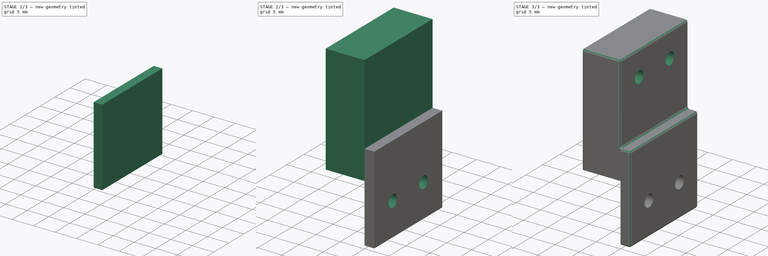
[diagram: build sequence overview — one tinted view per stage of 3, left to right]
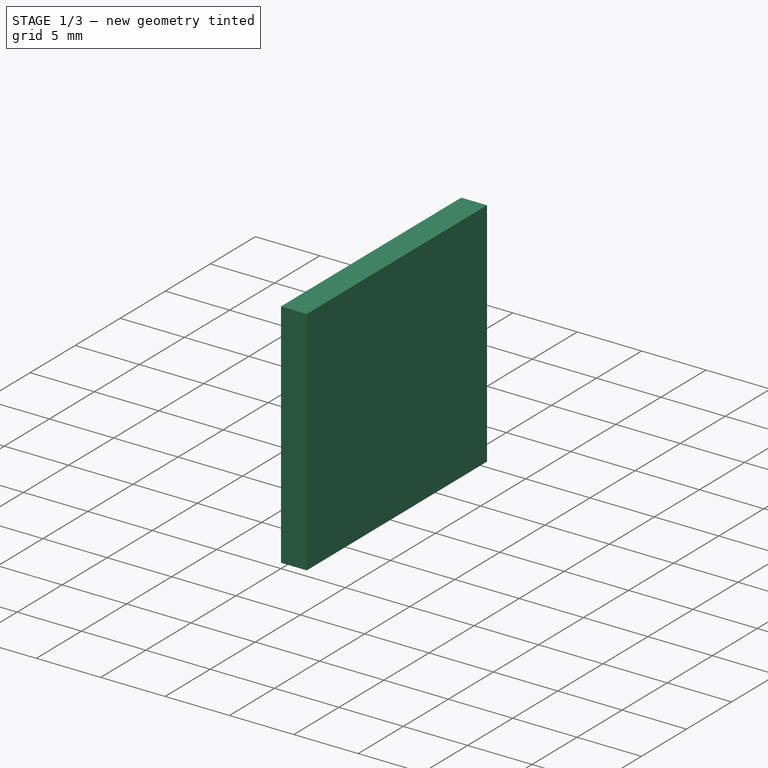
[diagram: stage 1 of 3 — iso view after this stage's code; geometry added in this stage tinted green]
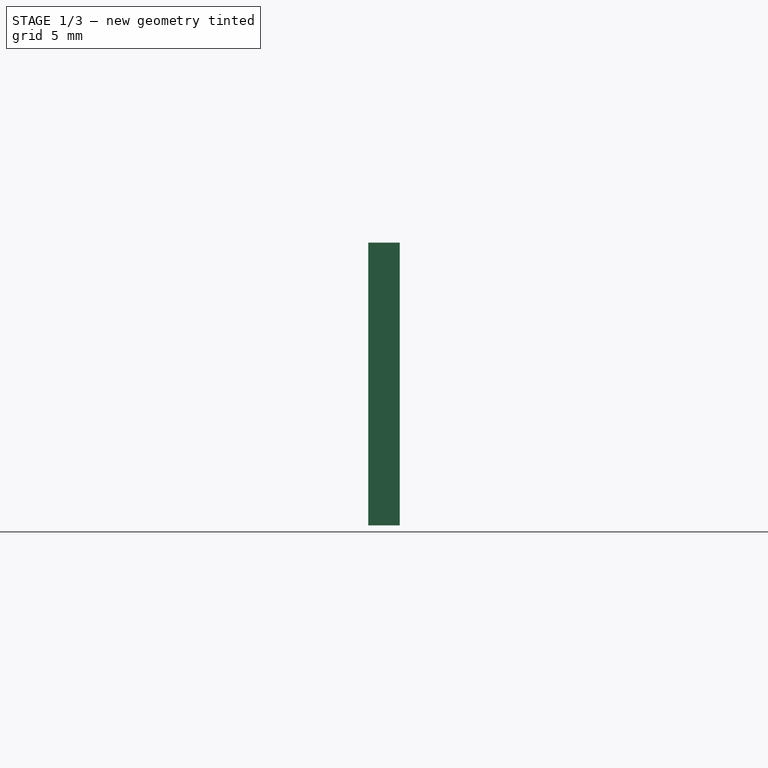
[diagram: stage 1 of 3 — front view after this stage's code; geometry added in this stage tinted green]
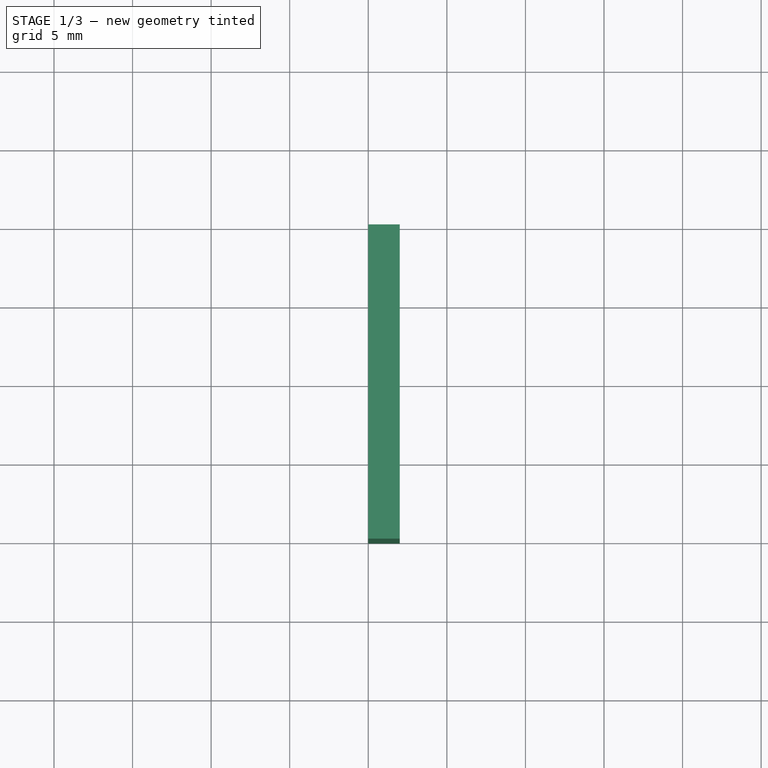
[diagram: stage 1 of 3 — top view after this stage's code; geometry added in this stage tinted green]
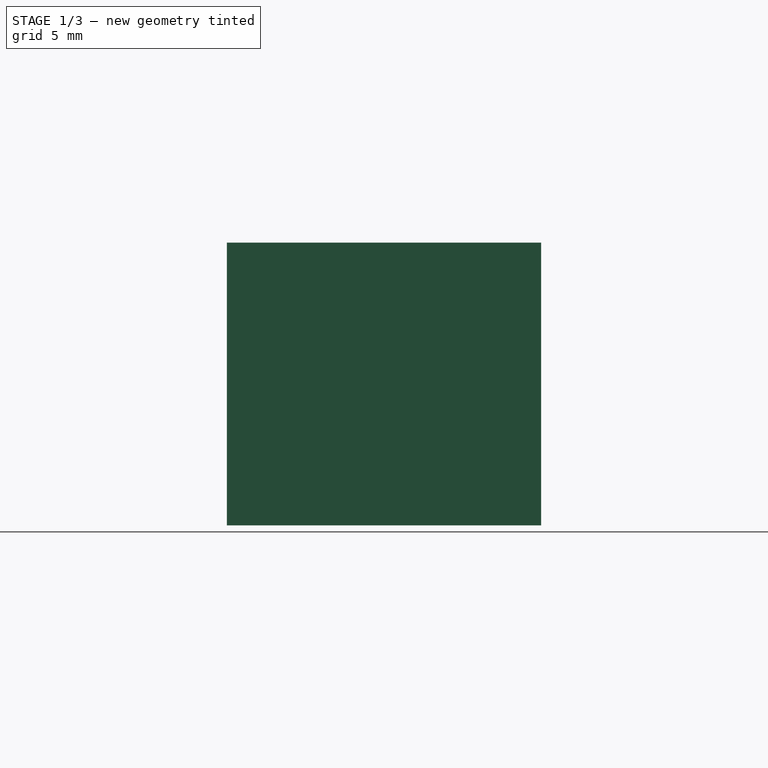
[diagram: stage 1 of 3 — right view after this stage's code; geometry added in this stage tinted green]
FCSTD DOCUMENT  (FreeCAD 0.17R13541 (Git))
Label: GEEETechEndstopExtension
License: Other
LicenseURL: https://www.gnu.org/licenses/gpl-2.0.html
objects: Sketcher::SketchObject×3, PartDesign::Pocket×2, PartDesign::Pad×2, Part::Box×1, PartDesign::FeatureBase×1, PartDesign::Body×1, Part::Fillet×1
note: 15 computed .brp shape members not serialized (recipe doc carries the construction recipe); baked Part::Feature solids carry a one-line shape summary decoded from their .brp

FEATURE [Part::Box] Box  label="Base"
  AttacherType = Attacher::AttachEngine3D
  Height = 18
  Length = 2
  Width = 20
FEATURE [PartDesign::FeatureBase] BaseFeature
  BaseFeature = -> Box
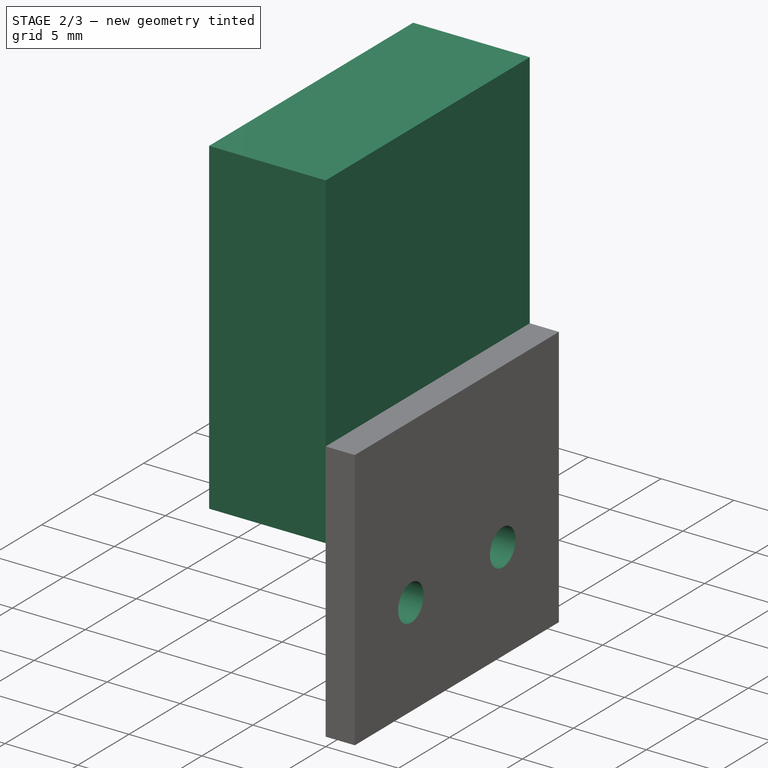
[diagram: stage 2 of 3 — iso view after this stage's code; geometry added in this stage tinted green]
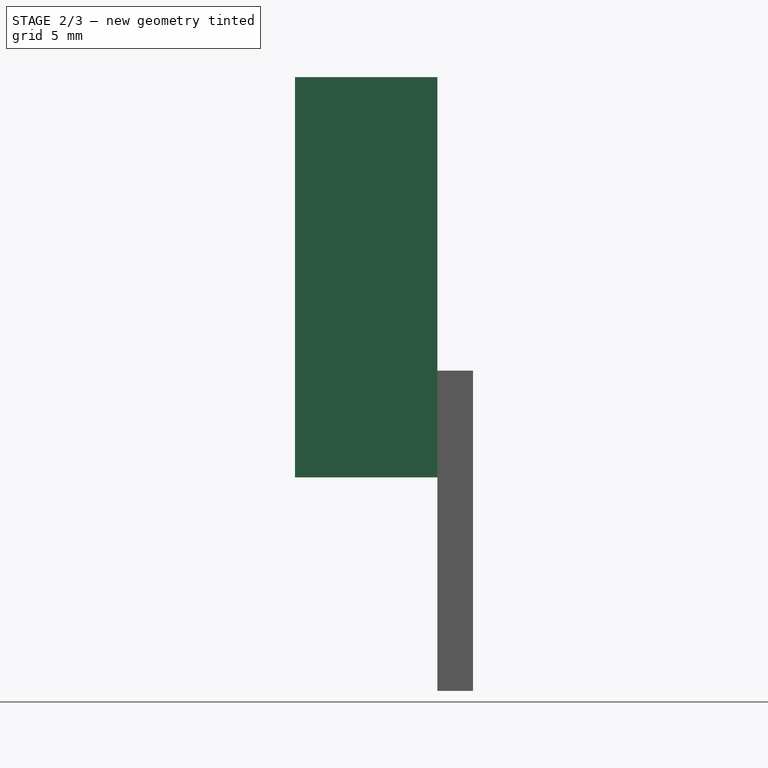
[diagram: stage 2 of 3 — front view after this stage's code; geometry added in this stage tinted green]
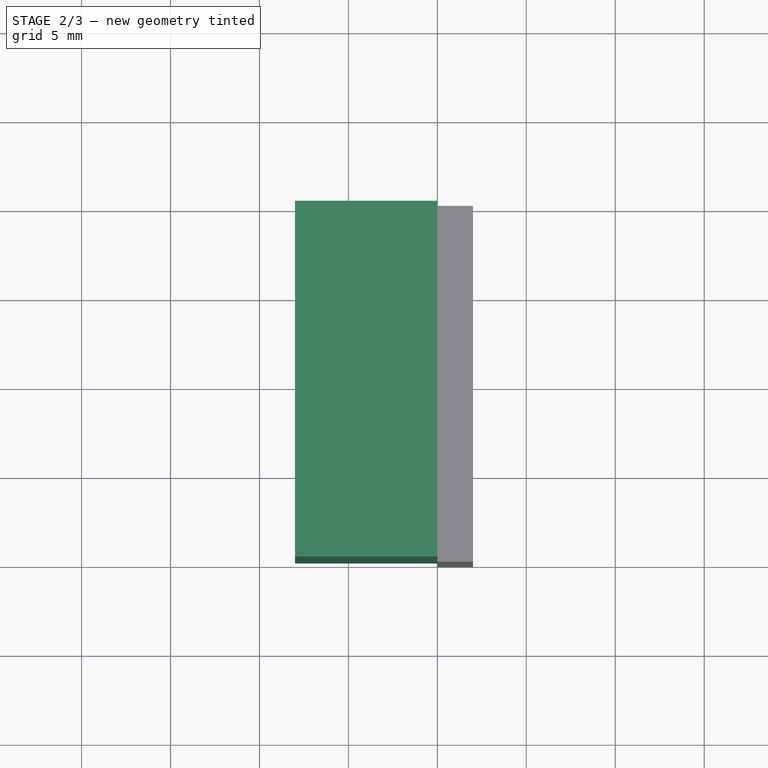
[diagram: stage 2 of 3 — top view after this stage's code; geometry added in this stage tinted green]
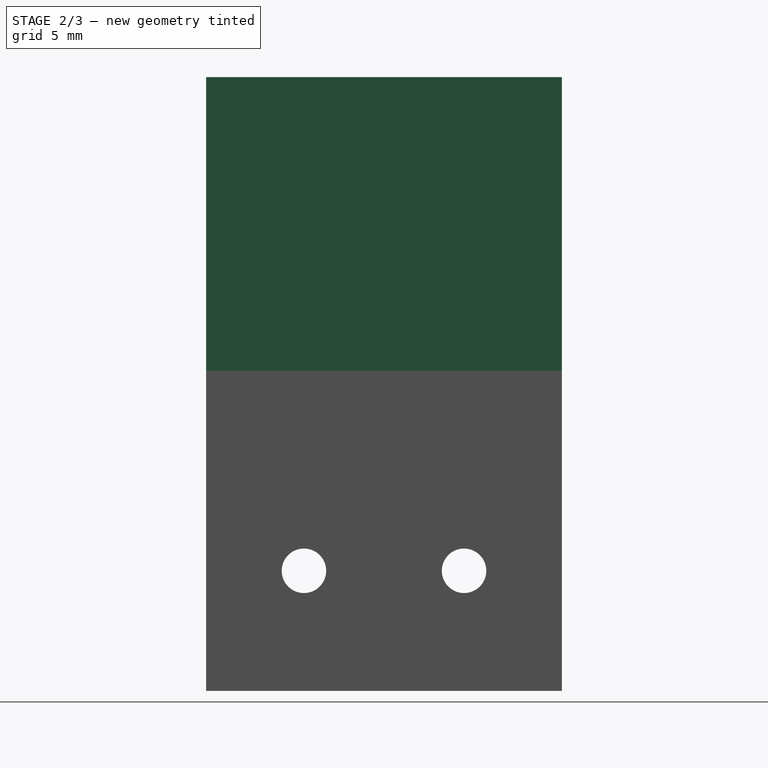
[diagram: stage 2 of 3 — right view after this stage's code; geometry added in this stage tinted green]
FEATURE [Sketcher::SketchObject] Sketch  label="SupportScrews"
  ExternalGeometry = -> [BaseFeature]
  MapMode = 5
  Placement = pos=(2,0,0) rot=(0.57735,0.57735,0.57735;2.0944rad)
  Support = -> [BaseFeature]
  sketch-geometry (6):
    g0: LineSegment [constr] StartX=10 StartY=18 StartZ=0 EndX=10 EndY=0 EndZ=0
    g1: LineSegment [constr] StartX=5.5 StartY=18 StartZ=0 EndX=5.5 EndY=0 EndZ=0
    g2: LineSegment [constr] StartX=14.5 StartY=18 StartZ=0 EndX=14.5 EndY=0 EndZ=0
    g3: LineSegment [constr] StartX=0 StartY=6.75 StartZ=0 EndX=20 EndY=6.75 EndZ=0
    g4: Circle CenterX=5.5 CenterY=6.75 CenterZ=0 NormalX=0 NormalY=0 NormalZ=1 AngleXU=0 Radius=1.25
    g5: Circle CenterX=14.5 CenterY=6.75 CenterZ=0 NormalX=0 NormalY=0 NormalZ=1 AngleXU=0 Radius=1.25
  constraints (22):
    c: PointOnObject(g0,g-6)
    c: PointOnObject(g0,g-4)
    c: Vertical(g0)
    c: Symmetric(g-6,g-6,g0)
    c: PointOnObject(g1,g-6)
    c: PointOnObject(g1,g-4)
    c: Vertical(g1)
    c: PointOnObject(g2,g-6)
    c: PointOnObject(g2,g-4)
    c: Vertical(g2)
    c: DistanceX(g1,g0) = 4.5
    c: DistanceX(g0,g2) = 4.5
    c: PointOnObject(g3,g-3)
    c: PointOnObject(g3,g-5)
    c: Horizontal(g3)
    c: DistanceY(g3,g-6) = 11.25
    c: PointOnObject(g4,g1)
    c: PointOnObject(g4,g3)
    c: PointOnObject(g5,g2)
    c: PointOnObject(g5,g3)
    c: Radius(g4) = 1.25
    c: Radius(g5) = 1.25
FEATURE [Sketcher::SketchObject] Sketch001  label="Support"
  ExternalGeometry = -> [BaseFeature]
  MapMode = 5
  Placement = pos=(0,0,0) rot=(0.57735,-0.57735,-0.57735;2.0944rad)
  Support = -> [BaseFeature]
  sketch-geometry (4):
    g0: LineSegment StartX=-20 StartY=18 StartZ=0 EndX=-20 EndY=12 EndZ=0
    g1: LineSegment StartX=0 StartY=18 StartZ=0 EndX=0 EndY=12 EndZ=0
    g2: LineSegment StartX=0 StartY=12 StartZ=0 EndX=-20 EndY=12 EndZ=0
    g3: LineSegment StartX=-20 StartY=18 StartZ=0 EndX=0 EndY=18 EndZ=0
  constraints (10):
    c: Coincident(g0,g-4)
    c: Coincident(g1,g-5)
    c: Coincident(g2,g1)
    c: Coincident(g2,g0)
    c: PointOnObject(g0,g-4)
    c: DistanceY(g0,g0) = 6
    c: DistanceY(g1,g1) = 6
    c: PointOnObject(g1,g-5)
    c: Coincident(g3,g0)
    c: Coincident(g3,g1)
FEATURE [PartDesign::Pocket] Pocket  label="SupportScrewsPocket"
  BaseFeature = -> BaseFeature
  Length = 5
  Length2 = 100
  Profile = -> Sketch
  Type = 1
FEATURE [PartDesign::Pad] Pad
  BaseFeature = -> Pocket
  Length = 8
  Length2 = 100
  Profile = -> Sketch001
  Type = 0
FEATURE [PartDesign::Pad] Pad001  label="Extension"
  BaseFeature = -> Pad
  Length = 16.5
  Length2 = 100
  Profile = -> Pad [Face13]
  Type = 0
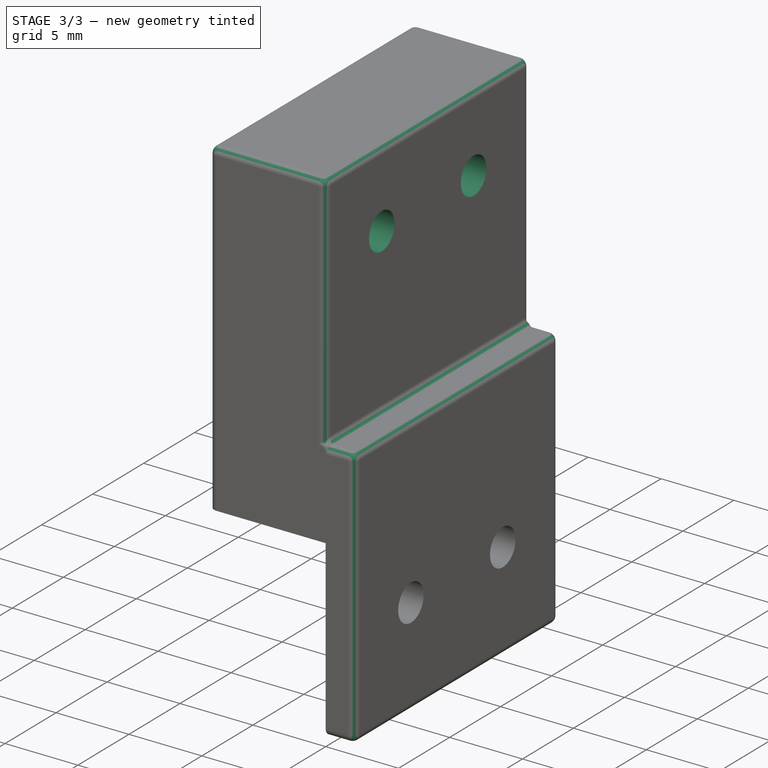
[diagram: stage 3 of 3 — iso view after this stage's code; geometry added in this stage tinted green]
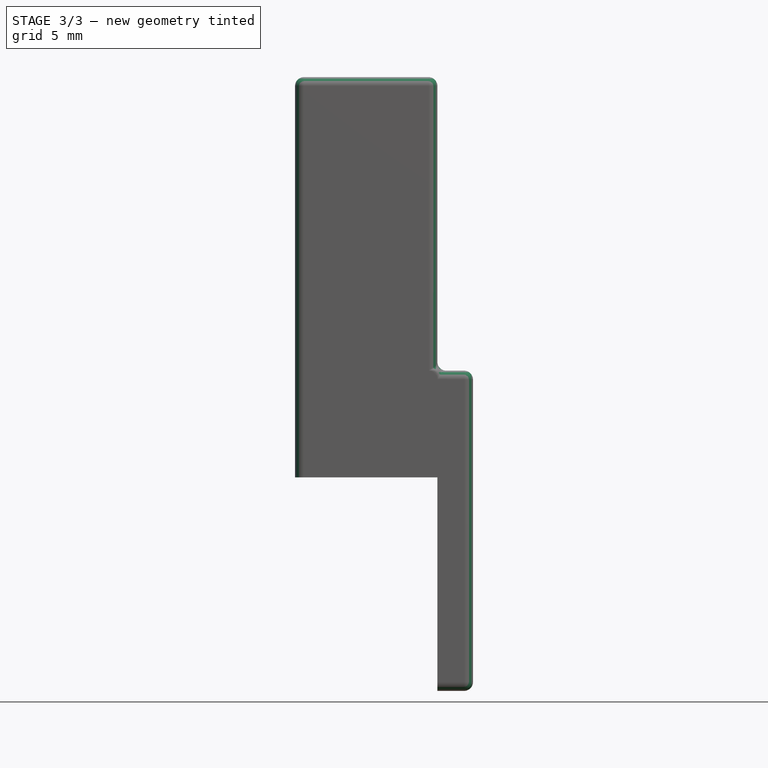
[diagram: stage 3 of 3 — front view after this stage's code; geometry added in this stage tinted green]
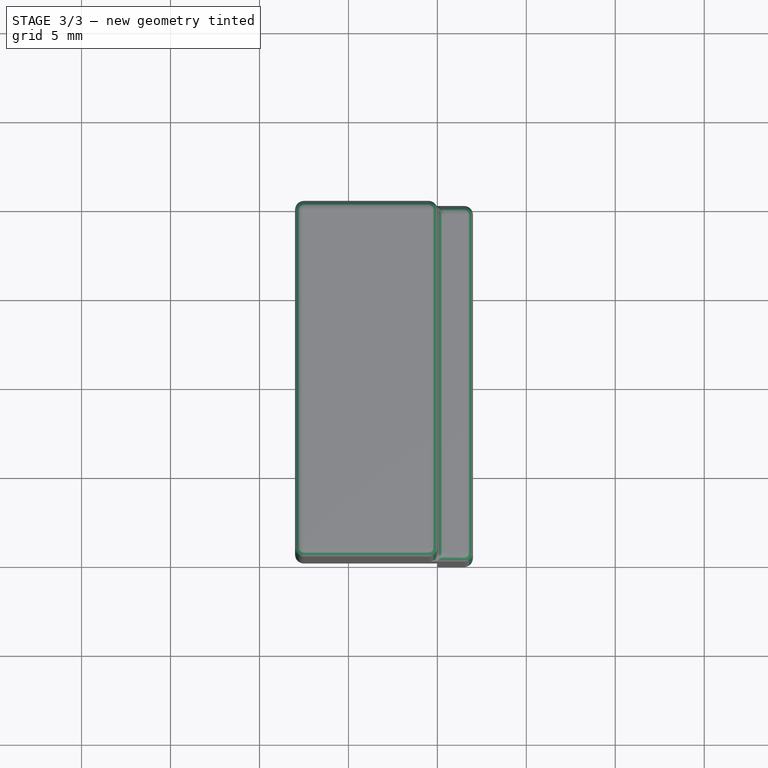
[diagram: stage 3 of 3 — top view after this stage's code; geometry added in this stage tinted green]
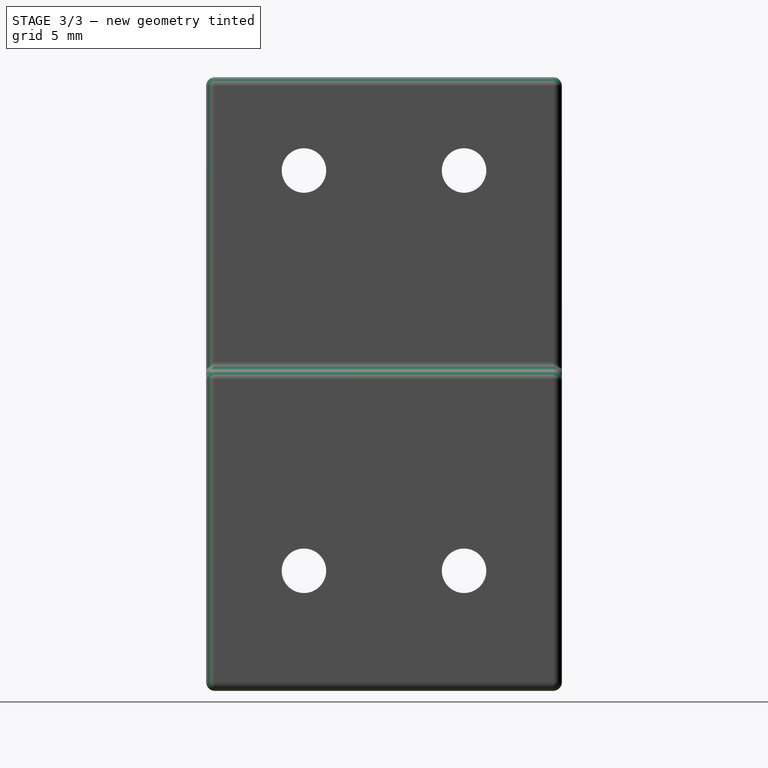
[diagram: stage 3 of 3 — right view after this stage's code; geometry added in this stage tinted green]
FEATURE [Sketcher::SketchObject] Sketch002  label="NewHoles"
  ExternalGeometry = -> [Pad001]
  MapMode = 5
  Placement = pos=(0,0,0) rot=(0.57735,0.57735,0.57735;2.0944rad)
  Support = -> [Pad001]
  sketch-geometry (6):
    g0: LineSegment [constr] StartX=0 StartY=29.25 StartZ=0 EndX=20 EndY=29.25 EndZ=0
    g1: LineSegment [constr] StartX=10 StartY=34.5 StartZ=0 EndX=10 EndY=18 EndZ=0
    g2: LineSegment [constr] StartX=5.5 StartY=34.5 StartZ=0 EndX=5.5 EndY=18 EndZ=0
    g3: LineSegment [constr] StartX=14.5 StartY=34.5 StartZ=0 EndX=14.5 EndY=18 EndZ=0
    g4: Circle CenterX=5.5 CenterY=29.25 CenterZ=0 NormalX=0 NormalY=0 NormalZ=1 AngleXU=0 Radius=1.25
    g5: Circle CenterX=14.5 CenterY=29.25 CenterZ=0 NormalX=0 NormalY=0 NormalZ=1 AngleXU=0 Radius=1.25
  constraints (22):
    c: PointOnObject(g0,g-4)
    c: PointOnObject(g0,g-5)
    c: Horizontal(g0)
    c: DistanceY(g0,g-4) = 5.25
    c: PointOnObject(g1,g-3)
    c: Vertical(g1)
    c: PointOnObject(g1,g-6)
    c: Symmetric(g-4,g-5,g1)
    c: PointOnObject(g2,g-3)
    c: PointOnObject(g2,g-6)
    c: Vertical(g2)
    c: PointOnObject(g3,g-3)
    c: Vertical(g3)
    c: PointOnObject(g3,g-6)
    c: DistanceX(g2,g1) = 4.5
    c: DistanceX(g1,g3) = 4.5
    c: PointOnObject(g4,g0)
    c: PointOnObject(g4,g2)
    c: PointOnObject(g5,g3)
    c: PointOnObject(g5,g0)
    c: Radius(g4) = 1.25
    c: Radius(g5) = 1.25
FEATURE [PartDesign::Pocket] Pocket001  label="NewHolesPocket"
  BaseFeature = -> Pad001
  Length = 5
  Length2 = 100
  Profile = -> Sketch002
  Type = 1
FEATURE [PartDesign::Body] Body
  BaseFeature = -> Box
  Group = -> [BaseFeature,Sketch,Sketch001,Pocket,Pad,Pad001,Sketch002,Pocket001]
  Origin = -> Origin
  Tip = -> Pocket001
FEATURE [Part::Fillet] Fillet
  Base = -> Pocket001
  Edges = 19 edges r=0.5: [Edge7,Edge8,Edge9,Edge14,Edge15,Edge16,Edge18,Edge23,Edge24,Edge26,Edge28,Edge30,Edge31,Edge32,Edge35,Edge36,Edge37,Edge38,Edge39]
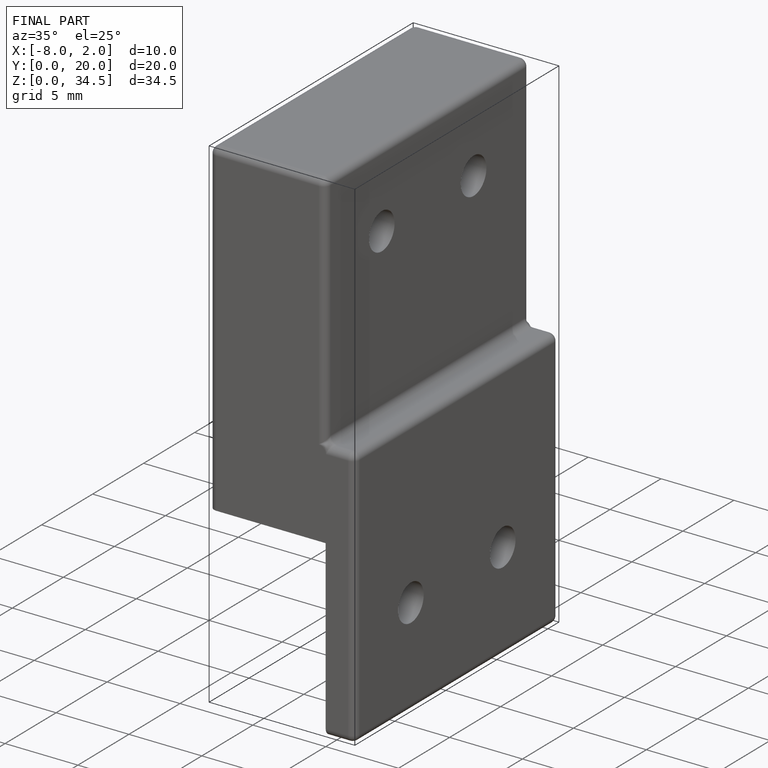
[diagram: finished part — iso view with bounding-box wireframe]
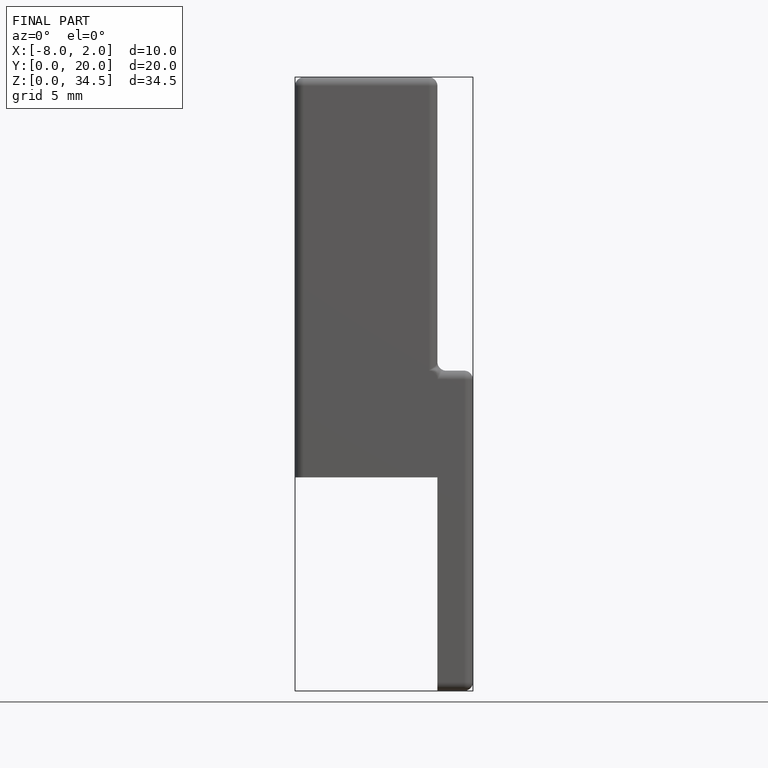
[diagram: finished part — front view with bounding-box wireframe]
